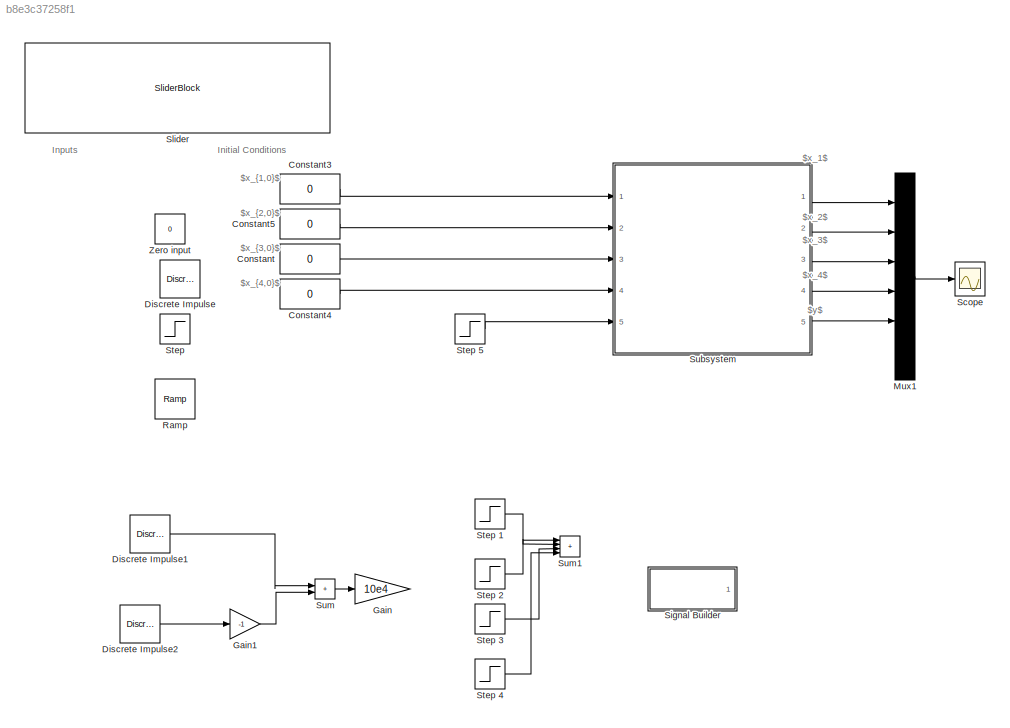
MODEL slx_b8e3c37258f1
KIND model
CONFIG AbsTol = auto
CONFIG EnableMultiTasking = off
CONFIG FixedStep = 1e-4
CONFIG MaxStep = 1e-4
CONFIG MinStep = auto
CONFIG RelTol = 1e-4
CONFIG SampleTimeConstraint = Unconstrained
CONFIG SolverName = ode23
CONFIG StartTime = 0.0
CONFIG StopTime = 50
WORKSPACE source: mxarray member
WORKSPACE L = 2
WORKSPACE Sig: Simulink.Signal (value not decoded)
WORKSPACE g = 9.8
WORKSPACE mC = 10
WORKSPACE mL = 20
BLOCK [Constant] Constant
  Value = 0
BLOCK [Constant] Constant3
  Value = 0
BLOCK [Constant] Constant4
  Value = 0
BLOCK [Constant] Constant5
  Value = 0
BLOCK [Reference] Discrete Impulse  REF=dspsrcs4/Discrete 
Impulse
  NameLocation = left
  Ports = [0, 1]
  SourceBlock = dspsrcs4/Discrete \nImpulse
  SourceProductBaseCode = DS
  SourceType = Discrete Impulse
BLOCK [Reference] Discrete Impulse1  REF=dspsrcs4/Discrete 
Impulse
  NameLocation = left
  Ports = [0, 1]
  SourceBlock = dspsrcs4/Discrete \nImpulse
  SourceProductBaseCode = DS
  SourceType = Discrete Impulse
BLOCK [Reference] Discrete Impulse2  REF=dspsrcs4/Discrete 
Impulse
  NameLocation = left
  Ports = [0, 1]
  SourceBlock = dspsrcs4/Discrete \nImpulse
  SourceProductBaseCode = DS
  SourceType = Discrete Impulse
BLOCK [Gain] Gain
  Gain = 10e4
BLOCK [Gain] Gain1
  Gain = -1
BLOCK [Mux] Mux1
  DisplayOption = bar
  Inputs = 6
  Ports = [6, 1]
BLOCK [Reference] Ramp   REF=simulink/Sources/Ramp
  NameLocation = left
  Ports = [0, 1]
  SourceBlock = simulink/Sources/Ramp
  SourceProductBaseCode = SL
  SourceType = Ramp
BLOCK [Scope] Scope 
  Floating = off
  NumInputPorts = 1
  Ports = [1]
  ScopeSpecificationString = Simulink.scopes.TimeScopeBlockCfg('CurrentConfiguration', extmgr.ConfigurationSet(extmgr.Configuration('Core','General UI',true,'FigureColor',[1 1 1]),extmgr.Configuration('Core','Source UI',true),extmgr.Configuration('Sources','WiredSimulink',true),extmgr.Configuration('Visuals','Time Domain',true,'PlotType','Line','SerializedDisplays',{struct('MinYLimReal','-1.39844','MaxYLimReal','2.58595','YLa...<+2371ch>
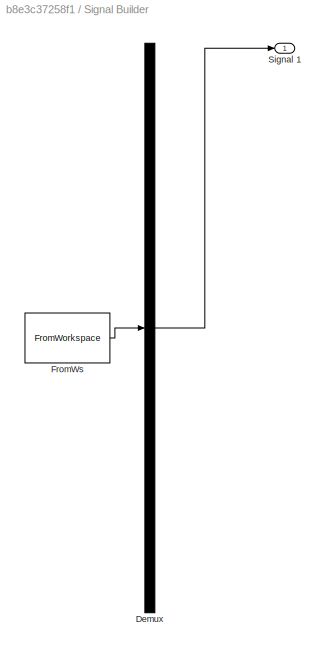
BLOCK [SubSystem] Signal Builder
  ClipboardFcn = sigbuilder_block('clipboard');
  CloseFcn = sigbuilder_block('close');
  ContinueFcn = sigbuilder_block('continue');
  CopyFcn = sigbuilder_block('copy');
  DeleteFcn = sigbuilder_block('delete');
  LoadFcn = sigbuilder_block('load');
  MaskHideContents = on
  ModelCloseFcn = sigbuilder_block('modelClose');
  NameChangeFcn = sigbuilder_block('namechange');
  OpenFcn = sigbuilder_block('open',[0 30 1152 561.6 ]);
  PauseFcn = sigbuilder_block('pause');
  Ports = [0, 1]
  PreSaveFcn = sigbuilder_block('preSave');
  RequestExecContextInheritance = off
  StartFcn = sigbuilder_block('start');
  StopFcn = sigbuilder_block('stop');
  Tag = STV Subsys
BLOCK [Demux] Signal Builder/Demux
  DisplayOption = none
  Outputs = 1
  Ports = [1, 1]
  Tag = STV Demux
BLOCK [FromWorkspace] Signal Builder/FromWs
  Tag = STV FromWs
  VariableName = tuvar
BLOCK [Outport] Signal Builder/Signal 1
  Tag = STV Outport
BLOCK [SliderBlock] Slider
  ScaleMax = 200
  ScaleMin = 10
BLOCK [Step] Step 
  NameLocation = left
  SampleTime = 0
  Time = 0
BLOCK [Step] Step 1
  NameLocation = left
  SampleTime = 0
  Time = 0
BLOCK [Step] Step 2
  After = -1
  NameLocation = left
  SampleTime = 0
  Time = 10
BLOCK [Step] Step 3
  After = +1
  NameLocation = left
  SampleTime = 0
  Time = 15
BLOCK [Step] Step 4
  After = -1
  NameLocation = left
  SampleTime = 0
  Time = 5
BLOCK [Step] Step 5
  NameLocation = left
  SampleTime = 0
  Time = 0
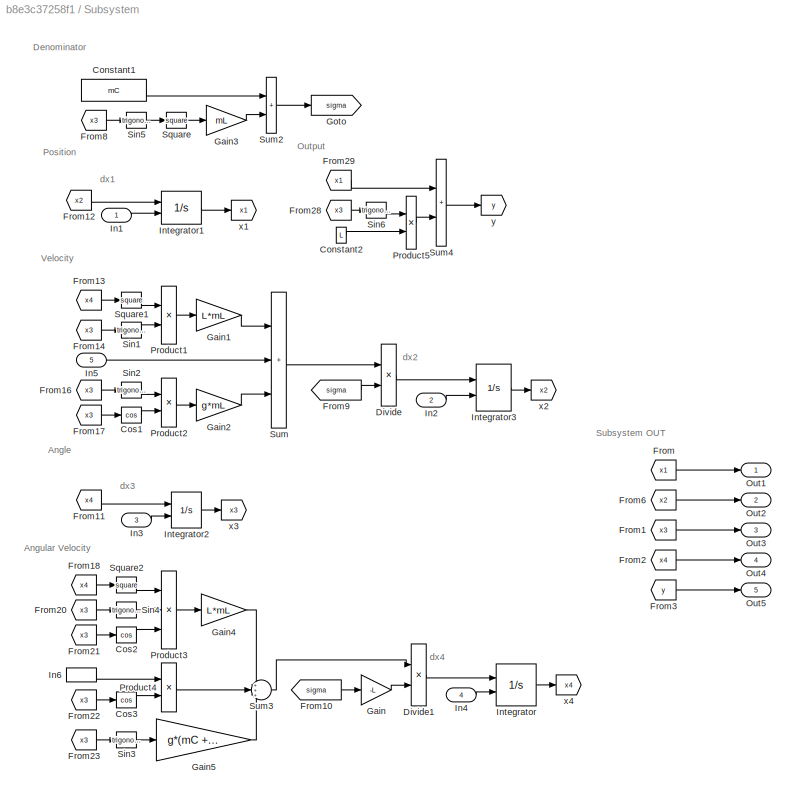
BLOCK [SubSystem] Subsystem
  Ports = [5, 5]
  RequestExecContextInheritance = off
BLOCK [Constant] Subsystem/Constant1
  Value = mC
BLOCK [Constant] Subsystem/Constant2
  Value = L
BLOCK [Trigonometry] Subsystem/Cos1
  Operator = cos
  Ports = [1, 1]
BLOCK [Trigonometry] Subsystem/Cos2
  Operator = cos
  Ports = [1, 1]
BLOCK [Trigonometry] Subsystem/Cos3
  Operator = cos
  Ports = [1, 1]
BLOCK [Product] Subsystem/Divide
  Inputs = */
  Ports = [2, 1]
BLOCK [Product] Subsystem/Divide1
  Inputs = */
  Ports = [2, 1]
BLOCK [From] Subsystem/From
  GotoTag = x1
BLOCK [From] Subsystem/From1
  GotoTag = x3
BLOCK [From] Subsystem/From10
  GotoTag = sigma
BLOCK [From] Subsystem/From11
  GotoTag = x4
BLOCK [From] Subsystem/From12
  GotoTag = x2
BLOCK [From] Subsystem/From13
  GotoTag = x4
BLOCK [From] Subsystem/From14
  GotoTag = x3
BLOCK [From] Subsystem/From16
  GotoTag = x3
BLOCK [From] Subsystem/From17
  GotoTag = x3
BLOCK [From] Subsystem/From18
  GotoTag = x4
BLOCK [From] Subsystem/From2
  GotoTag = x4
BLOCK [From] Subsystem/From20
  GotoTag = x3
BLOCK [From] Subsystem/From21
  GotoTag = x3
BLOCK [From] Subsystem/From22
  GotoTag = x3
BLOCK [From] Subsystem/From23
  GotoTag = x3
BLOCK [From] Subsystem/From28
  GotoTag = x3
BLOCK [From] Subsystem/From29
  GotoTag = x1
BLOCK [From] Subsystem/From3
  GotoTag = y
BLOCK [From] Subsystem/From6
  GotoTag = x2
BLOCK [From] Subsystem/From8
  GotoTag = x3
BLOCK [From] Subsystem/From9
  GotoTag = sigma
BLOCK [Gain] Subsystem/Gain
  Gain = -L
BLOCK [Gain] Subsystem/Gain1
  Gain = L*mL
BLOCK [Gain] Subsystem/Gain2
  Gain = g*mL
BLOCK [Gain] Subsystem/Gain3
  Gain = mL
BLOCK [Gain] Subsystem/Gain4
  Gain = L*mL
BLOCK [Gain] Subsystem/Gain5
  Gain = g*(mC + mL)
BLOCK [Goto] Subsystem/Goto
  GotoTag = sigma
BLOCK [Inport] Subsystem/In1
BLOCK [Inport] Subsystem/In2
  Port = 2
BLOCK [Inport] Subsystem/In3
  Port = 3
BLOCK [Inport] Subsystem/In4
  Port = 4
BLOCK [Inport] Subsystem/In5
  Port = 5
BLOCK [InportShadow] Subsystem/In6
  Port = 5
BLOCK [Integrator] Subsystem/Integrator
  InitialConditionSource = external
  Ports = [2, 1]
BLOCK [Integrator] Subsystem/Integrator1
  InitialConditionSource = external
  Ports = [2, 1]
BLOCK [Integrator] Subsystem/Integrator2
  InitialCondition = pi+0.01
  InitialConditionSource = external
  Ports = [2, 1]
  WrappedStateLowerValue = 0
  WrappedStateUpperValue = 2*pi
BLOCK [Integrator] Subsystem/Integrator3
  InitialConditionSource = external
  Ports = [2, 1]
BLOCK [Outport] Subsystem/Out1
BLOCK [Outport] Subsystem/Out2
  Port = 2
BLOCK [Outport] Subsystem/Out3
  Port = 3
BLOCK [Outport] Subsystem/Out4
  Port = 4
BLOCK [Outport] Subsystem/Out5
  Port = 5
BLOCK [Product] Subsystem/Product1
  Ports = [2, 1]
BLOCK [Product] Subsystem/Product2
  Ports = [2, 1]
BLOCK [Product] Subsystem/Product3
  Inputs = 3
  Ports = [3, 1]
BLOCK [Product] Subsystem/Product4
  Ports = [2, 1]
BLOCK [Product] Subsystem/Product5
  Ports = [2, 1]
BLOCK [Trigonometry] Subsystem/Sin1
  Ports = [1, 1]
BLOCK [Trigonometry] Subsystem/Sin2
  Ports = [1, 1]
BLOCK [Trigonometry] Subsystem/Sin3
  Ports = [1, 1]
BLOCK [Trigonometry] Subsystem/Sin4
  Ports = [1, 1]
BLOCK [Trigonometry] Subsystem/Sin5
  Ports = [1, 1]
BLOCK [Trigonometry] Subsystem/Sin6
  Ports = [1, 1]
BLOCK [Math] Subsystem/Square
  Operator = square
  Ports = [1, 1]
BLOCK [Math] Subsystem/Square1
  Operator = square
  Ports = [1, 1]
BLOCK [Math] Subsystem/Square2
  Operator = square
  Ports = [1, 1]
BLOCK [Sum] Subsystem/Sum
  IconShape = rectangular
  Inputs = +++
  Ports = [3, 1]
BLOCK [Sum] Subsystem/Sum2
  IconShape = rectangular
  Ports = [2, 1]
BLOCK [Sum] Subsystem/Sum3
  Inputs = +++
  Ports = [3, 1]
BLOCK [Sum] Subsystem/Sum4
  IconShape = rectangular
  Ports = [2, 1]
BLOCK [Goto] Subsystem/x1
  GotoTag = x1
BLOCK [Goto] Subsystem/x2
  GotoTag = x2
BLOCK [Goto] Subsystem/x3
  GotoTag = x3
BLOCK [Goto] Subsystem/x4
  GotoTag = x4
BLOCK [Goto] Subsystem/y
  GotoTag = y
BLOCK [Sum] Sum
  IconShape = rectangular
  Inputs = |++
  Ports = [2, 1]
BLOCK [Sum] Sum1
  IconShape = rectangular
  Inputs = ++++
  Ports = [4, 1]
BLOCK [Constant] Zero input
  NameLocation = left
  Value = 0
ANNOTATION (root): $x_{1,0}$
ANNOTATION (root): $x_{2,0}$
ANNOTATION (root): $x_{3,0}$
ANNOTATION (root): $x_{4,0}$
ANNOTATION (root): $x_1$
ANNOTATION (root): $x_2$
ANNOTATION (root): $x_3$
ANNOTATION (root): $x_4$
ANNOTATION (root): $y$
ANNOTATION (root): Initial Conditions
ANNOTATION (root): Inputs
ANNOTATION Subsystem: Angle
ANNOTATION Subsystem: Angular Velocity
ANNOTATION Subsystem: Denominator
ANNOTATION Subsystem: Output
ANNOTATION Subsystem: Position
ANNOTATION Subsystem: Subsystem OUT
ANNOTATION Subsystem: Velocity
ANNOTATION Subsystem: dx1
ANNOTATION Subsystem: dx2
ANNOTATION Subsystem: dx3
ANNOTATION Subsystem: dx4
LINE Constant3:1 -> Subsystem:1
LINE Constant4:1 -> Subsystem:4
LINE Constant5:1 -> Subsystem:2
LINE Constant:1 -> Subsystem:3
LINE Discrete Impulse1:1 -> Sum:1
LINE Discrete Impulse2:1 -> Gain1:1
LINE Gain1:1 -> Sum:2
LINE Mux1:1 -> Scope :1
LINE Step 1:1 -> Sum1:2
LINE Step 2:1 -> Sum1:1
LINE Step 3:1 -> Sum1:3
LINE Step 4:1 -> Sum1:4
LINE Step 5:1 -> Subsystem:5
LINE Subsystem/Constant1:1 -> Subsystem/Sum2:1
LINE Subsystem/Constant2:1 -> Subsystem/Product5:2
LINE Subsystem/Cos1:1 -> Subsystem/Product2:2
LINE Subsystem/Cos2:1 -> Subsystem/Product3:3
LINE Subsystem/Cos3:1 -> Subsystem/Product4:2
LINE Subsystem/Divide1:1 -> Subsystem/Integrator:1
LINE Subsystem/Divide:1 -> Subsystem/Integrator3:1
LINE Subsystem/From10:1 -> Subsystem/Gain:1
LINE Subsystem/From11:1 -> Subsystem/Integrator2:1
LINE Subsystem/From12:1 -> Subsystem/Integrator1:1
LINE Subsystem/From13:1 -> Subsystem/Square1:1
LINE Subsystem/From14:1 -> Subsystem/Sin1:1
LINE Subsystem/From16:1 -> Subsystem/Sin2:1
LINE Subsystem/From17:1 -> Subsystem/Cos1:1
LINE Subsystem/From18:1 -> Subsystem/Square2:1
LINE Subsystem/From1:1 -> Subsystem/Out3:1
LINE Subsystem/From20:1 -> Subsystem/Sin4:1
LINE Subsystem/From21:1 -> Subsystem/Cos2:1
LINE Subsystem/From22:1 -> Subsystem/Cos3:1
LINE Subsystem/From23:1 -> Subsystem/Sin3:1
LINE Subsystem/From28:1 -> Subsystem/Sin6:1
LINE Subsystem/From29:1 -> Subsystem/Sum4:1
LINE Subsystem/From2:1 -> Subsystem/Out4:1
LINE Subsystem/From3:1 -> Subsystem/Out5:1
LINE Subsystem/From6:1 -> Subsystem/Out2:1
LINE Subsystem/From8:1 -> Subsystem/Sin5:1
LINE Subsystem/From9:1 -> Subsystem/Divide:2
LINE Subsystem/From:1 -> Subsystem/Out1:1
LINE Subsystem/Gain1:1 -> Subsystem/Sum:1
LINE Subsystem/Gain2:1 -> Subsystem/Sum:3
LINE Subsystem/Gain3:1 -> Subsystem/Sum2:2
LINE Subsystem/Gain4:1 -> Subsystem/Sum3:1
LINE Subsystem/Gain5:1 -> Subsystem/Sum3:3
LINE Subsystem/Gain:1 -> Subsystem/Divide1:2
LINE Subsystem/In1:1 -> Subsystem/Integrator1:2
LINE Subsystem/In2:1 -> Subsystem/Integrator3:2
LINE Subsystem/In3:1 -> Subsystem/Integrator2:2
LINE Subsystem/In4:1 -> Subsystem/Integrator:2
LINE Subsystem/In5:1 -> Subsystem/Sum:2
LINE Subsystem/In6:1 -> Subsystem/Product4:1
LINE Subsystem/Integrator1:1 -> Subsystem/x1:1
LINE Subsystem/Integrator2:1 -> Subsystem/x3:1
LINE Subsystem/Integrator3:1 -> Subsystem/x2:1
LINE Subsystem/Integrator:1 -> Subsystem/x4:1
LINE Subsystem/Product1:1 -> Subsystem/Gain1:1
LINE Subsystem/Product2:1 -> Subsystem/Gain2:1
LINE Subsystem/Product3:1 -> Subsystem/Gain4:1
LINE Subsystem/Product4:1 -> Subsystem/Sum3:2
LINE Subsystem/Product5:1 -> Subsystem/Sum4:2
LINE Subsystem/Sin1:1 -> Subsystem/Product1:2
LINE Subsystem/Sin2:1 -> Subsystem/Product2:1
LINE Subsystem/Sin3:1 -> Subsystem/Gain5:1
LINE Subsystem/Sin4:1 -> Subsystem/Product3:2
LINE Subsystem/Sin5:1 -> Subsystem/Square:1
LINE Subsystem/Sin6:1 -> Subsystem/Product5:1
LINE Subsystem/Square1:1 -> Subsystem/Product1:1
LINE Subsystem/Square2:1 -> Subsystem/Product3:1
LINE Subsystem/Square:1 -> Subsystem/Gain3:1
LINE Subsystem/Sum2:1 -> Subsystem/Goto:1
LINE Subsystem/Sum3:1 -> Subsystem/Divide1:1
LINE Subsystem/Sum4:1 -> Subsystem/y:1
LINE Subsystem/Sum:1 -> Subsystem/Divide:1
LINE Subsystem:1 -> Mux1:1
LINE Subsystem:2 -> Mux1:2
LINE Subsystem:3 -> Mux1:3
LINE Subsystem:4 -> Mux1:4
LINE Subsystem:5 -> Mux1:5
LINE Sum:1 -> Gain:1
